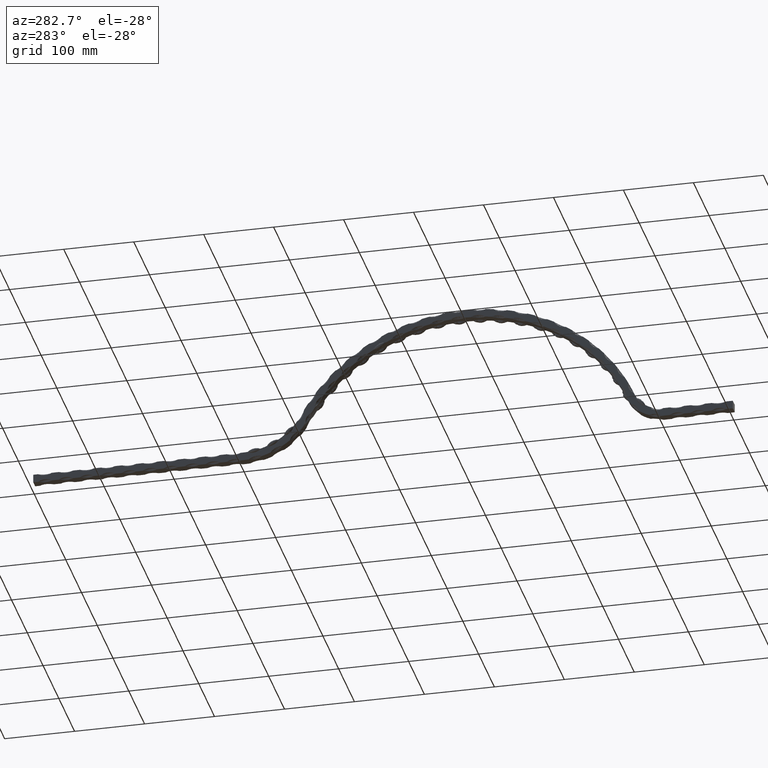
[diagram: clean part render]
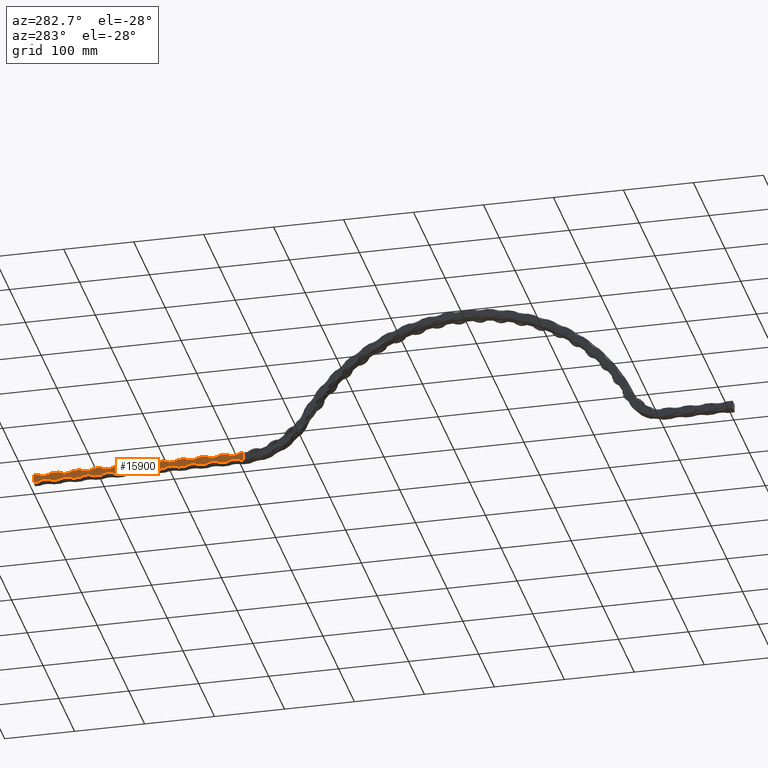
[diagram: same view with one face highlighted and labeled with its STEP entity id]
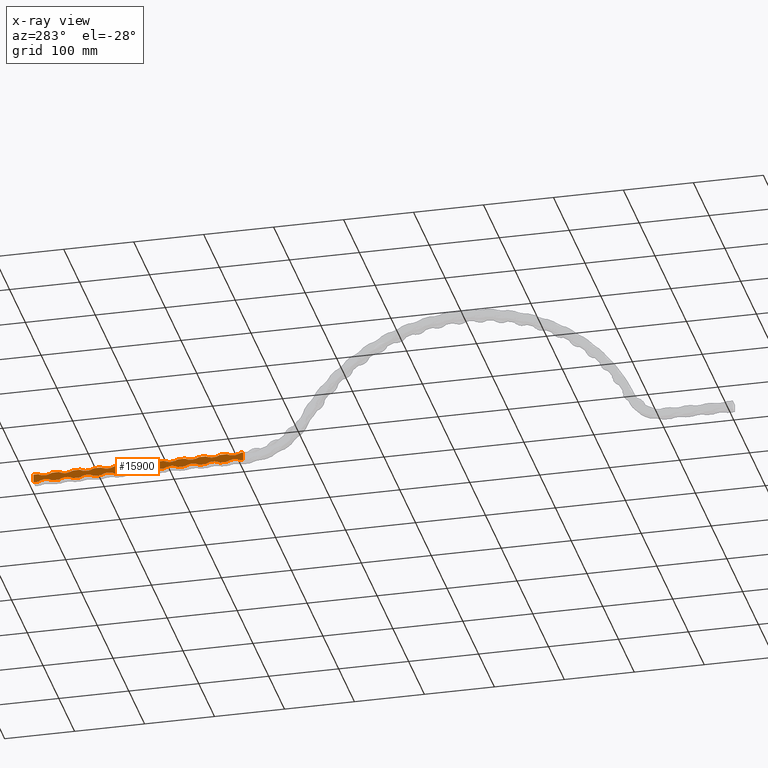
[diagram: x-ray of the same camera — body ghosted, the highlighted face saturated]
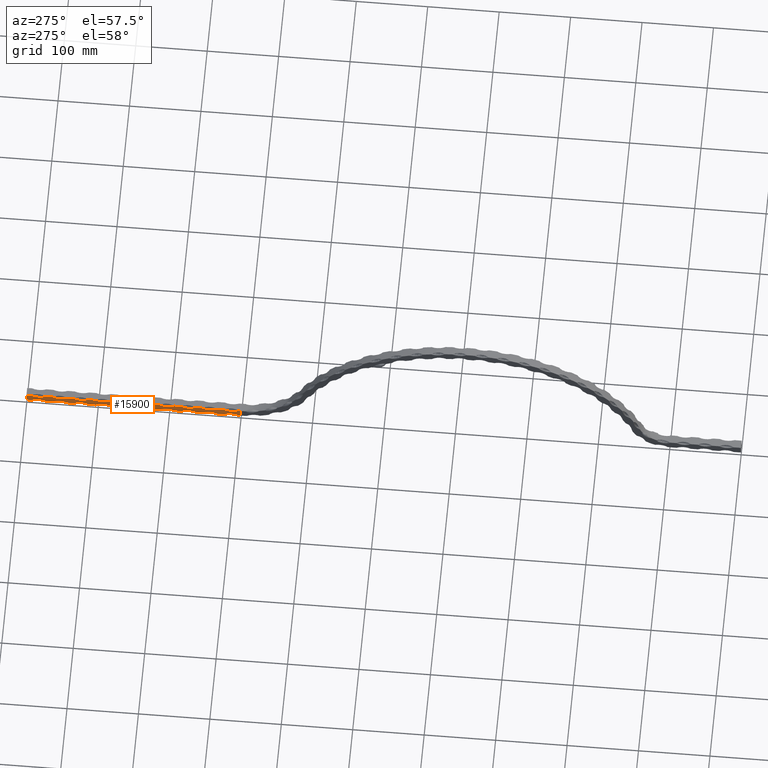
[diagram: same view with one face highlighted and labeled with its STEP entity id]
A machine part, auxiliary view. The second image highlights one B-rep face of the part: STEP entity #15900.
The next image is the same camera in x-ray: the body ghosted, the highlighted face saturated — about 0% of this face is hidden behind the body in this view.
A second angle (auxiliary view) of the same face is appended — the face is thin or edge-on in the first view.
In plain terms, the highlighted planar face has unit normal (-1, 0, 0).
Its self-contained STEP definition (entity closure, byte-faithful):
#121 = CARTESIAN_POINT ( 'NONE',  ( -6.000000000000000000, 943.2533592981684500, 5.999999999999980500 ) ) ;
#166 = CARTESIAN_POINT ( 'NONE',  ( -6.000000000000000000, 700.0000000000001100, -6.000000000000005300 ) ) ;
#200 = EDGE_CURVE ( 'NONE', #4611, #8206, #10618, .T. ) ;
#264 = CARTESIAN_POINT ( 'NONE',  ( -6.000000000000000000, 883.2533592981684500, 5.999999999999960000 ) ) ;
#275 = LINE ( 'NONE', #853, #11154 ) ;
#276 = ORIENTED_EDGE ( 'NONE', *, *, #12450, .T. ) ;
#282 = VERTEX_POINT ( 'NONE', #6508 ) ;
#368 = VERTEX_POINT ( 'NONE', #16281 ) ;
#491 = DIRECTION ( 'NONE',  ( 0.0000000000000000000, 0.0000000000000000000, 1.000000000000000000 ) ) ;
#521 = VERTEX_POINT ( 'NONE', #9521 ) ;
#559 = VECTOR ( 'NONE', #14732, 1000.000000000000000 ) ;
#621 = CARTESIAN_POINT ( 'NONE',  ( -6.000000000000000000, 933.2533592981684500, -6.000000000000024000 ) ) ;
#813 = CARTESIAN_POINT ( 'NONE',  ( -6.000000000000000000, 700.0000000000001100, -6.000000000000005300 ) ) ;
#850 = ORIENTED_EDGE ( 'NONE', *, *, #8699, .T. ) ;
#853 = CARTESIAN_POINT ( 'NONE',  ( -6.000000000000000000, 700.0000000000001100, -6.000000000000005300 ) ) ;
#902 = CIRCLE ( 'NONE', #16835, 18.16666666666665700 ) ;
#954 = DIRECTION ( 'NONE',  ( 1.000000000000000000, -0.0000000000000000000, -0.0000000000000000000 ) ) ;
#1023 = ORIENTED_EDGE ( 'NONE', *, *, #10650, .F. ) ;
#1112 = ORIENTED_EDGE ( 'NONE', *, *, #17871, .F. ) ;
#1182 = ORIENTED_EDGE ( 'NONE', *, *, #8196, .F. ) ;
#1282 = EDGE_CURVE ( 'NONE', #15871, #13392, #4335, .T. ) ;
#1290 = ORIENTED_EDGE ( 'NONE', *, *, #7136, .T. ) ;
#1478 = CARTESIAN_POINT ( 'NONE',  ( -6.000000000000000000, 1000.000000000000000, 6.000000000000130600 ) ) ;
#1514 = DIRECTION ( 'NONE',  ( 1.000000000000000000, -0.0000000000000000000, -0.0000000000000000000 ) ) ;
#1529 = DIRECTION ( 'NONE',  ( 0.0000000000000000000, 0.0000000000000000000, 1.000000000000000000 ) ) ;
#1532 = CARTESIAN_POINT ( 'NONE',  ( -6.000000000000000000, 700.0000000000001100, -6.000000000000005300 ) ) ;
#1537 = VECTOR ( 'NONE', #11964, 1000.000000000000000 ) ;
#1552 = VERTEX_POINT ( 'NONE', #8007 ) ;
#1579 = LINE ( 'NONE', #17161, #8524 ) ;
#1636 = DIRECTION ( 'NONE',  ( 0.0000000000000000000, 1.000000000000000000, 4.163336342344336500E-016 ) ) ;
#1648 = VERTEX_POINT ( 'NONE', #2617 ) ;
#1669 = AXIS2_PLACEMENT_3D ( 'NONE', #12584, #15285, #4246 ) ;
#1674 = DIRECTION ( 'NONE',  ( 0.0000000000000000000, 1.000000000000000000, 4.163336342344336500E-016 ) ) ;
#1687 = LINE ( 'NONE', #1764, #4319 ) ;
#1725 = CARTESIAN_POINT ( 'NONE',  ( -6.000000000000000000, 873.2533592981683300, 5.999999999999954700 ) ) ;
#1747 = CARTESIAN_POINT ( 'NONE',  ( -6.000000000000000000, 773.2533592981683300, -21.16666666666673200 ) ) ;
#1764 = CARTESIAN_POINT ( 'NONE',  ( -6.000000000000000000, 700.0000000000001100, -6.000000000000005300 ) ) ;
#1799 = ORIENTED_EDGE ( 'NONE', *, *, #10679, .T. ) ;
#1851 = CARTESIAN_POINT ( 'NONE',  ( -6.000000000000000000, 913.2533592981684500, 5.999999999999969800 ) ) ;
#2008 = CARTESIAN_POINT ( 'NONE',  ( -6.000000000000000000, 883.2533592981685600, -5.999999999999929800 ) ) ;
#2045 = ORIENTED_EDGE ( 'NONE', *, *, #4818, .T. ) ;
#2080 = DIRECTION ( 'NONE',  ( 1.000000000000000000, -0.0000000000000000000, -0.0000000000000000000 ) ) ;
#2090 = EDGE_CURVE ( 'NONE', #4611, #11901, #5618, .T. ) ;
#2093 = DIRECTION ( 'NONE',  ( 1.000000000000000000, -0.0000000000000000000, -0.0000000000000000000 ) ) ;
#2127 = CARTESIAN_POINT ( 'NONE',  ( -6.000000000000000000, 893.2533592981684500, -21.16666666666669600 ) ) ;
#2213 = LINE ( 'NONE', #8064, #5059 ) ;
#2243 = VERTEX_POINT ( 'NONE', #14299 ) ;
#2267 = DIRECTION ( 'NONE',  ( 0.0000000000000000000, 1.000000000000000000, 4.163336342344336500E-016 ) ) ;
#2334 = AXIS2_PLACEMENT_3D ( 'NONE', #1747, #14453, #11682 ) ;
#2373 = CARTESIAN_POINT ( 'NONE',  ( -6.000000000000000000, 803.2533592981683300, 21.16666666666659700 ) ) ;
#2417 = VERTEX_POINT ( 'NONE', #2577 ) ;
#2431 = CARTESIAN_POINT ( 'NONE',  ( -6.000000000000000000, 923.2533592981684500, 21.16666666666663200 ) ) ;
#2482 = CARTESIAN_POINT ( 'NONE',  ( -6.000000000000000000, 700.0000000000001100, -6.000000000000005300 ) ) ;
#2507 = LINE ( 'NONE', #6306, #3169 ) ;
#2540 = VECTOR ( 'NONE', #9480, 1000.000000000000000 ) ;
#2576 = CARTESIAN_POINT ( 'NONE',  ( -6.000000000000000000, 993.2533592981682200, -6.000000000000004400 ) ) ;
#2577 = CARTESIAN_POINT ( 'NONE',  ( -6.000000000000000000, 853.2533592981683300, 5.999999999999950300 ) ) ;
#2617 = CARTESIAN_POINT ( 'NONE',  ( -6.000000000000000000, 993.2533592981682200, 5.999999999999993800 ) ) ;
#2690 = VECTOR ( 'NONE', #5810, 1000.000000000000000 ) ;
#2715 = CARTESIAN_POINT ( 'NONE',  ( -6.000000000000000000, 723.2533592981683300, 5.999999999999906700 ) ) ;
#2817 = VECTOR ( 'NONE', #11275, 1000.000000000000000 ) ;
#2823 = EDGE_CURVE ( 'NONE', #16721, #11752, #10868, .T. ) ;
#2913 = CARTESIAN_POINT ( 'NONE',  ( -6.000000000000000000, 700.0000000000001100, -6.000000000000005300 ) ) ;
#3144 = VERTEX_POINT ( 'NONE', #1478 ) ;
#3169 = VECTOR ( 'NONE', #7570, 1000.000000000000000 ) ;
#3295 = DIRECTION ( 'NONE',  ( 0.0000000000000000000, 1.000000000000000000, 4.163336342344336500E-016 ) ) ;
#3374 = DIRECTION ( 'NONE',  ( 1.000000000000000000, -0.0000000000000000000, -0.0000000000000000000 ) ) ;
#3482 = CARTESIAN_POINT ( 'NONE',  ( -6.000000000000000000, 700.0000000000001100, 6.000000000000005300 ) ) ;
#3569 = DIRECTION ( 'NONE',  ( 0.0000000000000000000, 0.0000000000000000000, 1.000000000000000000 ) ) ;
#3582 = LINE ( 'NONE', #166, #17358 ) ;
#3630 = DIRECTION ( 'NONE',  ( 1.000000000000000000, -0.0000000000000000000, -0.0000000000000000000 ) ) ;
#3669 = DIRECTION ( 'NONE',  ( 0.0000000000000000000, 0.0000000000000000000, 1.000000000000000000 ) ) ;
#3674 = EDGE_CURVE ( 'NONE', #9717, #15650, #15036, .T. ) ;
#3697 = AXIS2_PLACEMENT_3D ( 'NONE', #10540, #2093, #6405 ) ;
#3858 = VECTOR ( 'NONE', #12353, 1000.000000000000000 ) ;
#3864 = CARTESIAN_POINT ( 'NONE',  ( -6.000000000000000000, 783.2533592981683300, 5.999999999999925400 ) ) ;
#3945 = AXIS2_PLACEMENT_3D ( 'NONE', #10280, #13230, #15991 ) ;
#3985 = ORIENTED_EDGE ( 'NONE', *, *, #13336, .T. ) ;
#3987 = VERTEX_POINT ( 'NONE', #4498 ) ;
#4013 = CARTESIAN_POINT ( 'NONE',  ( -6.000000000000000000, 823.2533592981683300, 5.999999999999941400 ) ) ;
#4022 = ORIENTED_EDGE ( 'NONE', *, *, #14968, .T. ) ;
#4062 = CARTESIAN_POINT ( 'NONE',  ( -6.000000000000000000, 733.2533592981683300, 5.999999999999912100 ) ) ;
#4109 = VERTEX_POINT ( 'NONE', #621 ) ;
#4150 = DIRECTION ( 'NONE',  ( 1.000000000000000000, -0.0000000000000000000, -0.0000000000000000000 ) ) ;
#4189 = DIRECTION ( 'NONE',  ( 0.0000000000000000000, 1.000000000000000000, 4.163336342344336500E-016 ) ) ;
#4215 = VECTOR ( 'NONE', #12421, 1000.000000000000000 ) ;
#4246 = DIRECTION ( 'NONE',  ( 0.0000000000000000000, -1.222263880321273900E-014, 1.000000000000000000 ) ) ;
#4267 = VECTOR ( 'NONE', #1636, 1000.000000000000000 ) ;
#4291 = ORIENTED_EDGE ( 'NONE', *, *, #2823, .F. ) ;
#4319 = VECTOR ( 'NONE', #12922, 1000.000000000000000 ) ;
#4335 = CIRCLE ( 'NONE', #11795, 18.16666666666665700 ) ;
#4345 = EDGE_CURVE ( 'NONE', #4807, #1648, #6911, .T. ) ;
#4411 = ORIENTED_EDGE ( 'NONE', *, *, #4688, .T. ) ;
#4440 = CARTESIAN_POINT ( 'NONE',  ( -6.000000000000000000, 943.2533592981686800, -5.999999999999904100 ) ) ;
#4485 = DIRECTION ( 'NONE',  ( 1.000000000000000000, -0.0000000000000000000, -0.0000000000000000000 ) ) ;
#4498 = CARTESIAN_POINT ( 'NONE',  ( -6.000000000000000000, 813.2533592981683300, 5.999999999999936100 ) ) ;
#4534 = AXIS2_PLACEMENT_3D ( 'NONE', #7239, #11208, #1529 ) ;
#4541 = VERTEX_POINT ( 'NONE', #13501 ) ;
#4550 = VECTOR ( 'NONE', #13519, 1000.000000000000000 ) ;
#4611 = VERTEX_POINT ( 'NONE', #18093 ) ;
#4670 = ORIENTED_EDGE ( 'NONE', *, *, #16554, .F. ) ;
#4688 = EDGE_CURVE ( 'NONE', #15650, #12928, #8865, .T. ) ;
#4736 = EDGE_CURVE ( 'NONE', #2417, #9702, #14584, .T. ) ;
#4752 = DIRECTION ( 'NONE',  ( 0.0000000000000000000, 1.000000000000000000, 4.163336342344336500E-016 ) ) ;
#4784 = DIRECTION ( 'NONE',  ( 1.000000000000000000, -0.0000000000000000000, -0.0000000000000000000 ) ) ;
#4802 = VERTEX_POINT ( 'NONE', #3864 ) ;
#4807 = VERTEX_POINT ( 'NONE', #16369 ) ;
#4818 = EDGE_CURVE ( 'NONE', #12928, #4807, #13261, .T. ) ;
#4837 = CARTESIAN_POINT ( 'NONE',  ( -6.000000000000000000, 923.2533592981684500, -21.16666666666668600 ) ) ;
#4848 = DIRECTION ( 'NONE',  ( 1.000000000000000000, -0.0000000000000000000, -0.0000000000000000000 ) ) ;
#4904 = CARTESIAN_POINT ( 'NONE',  ( -6.000000000000000000, 700.0000000000001100, 6.000000000000005300 ) ) ;
#4925 = DIRECTION ( 'NONE',  ( 0.0000000000000000000, 1.000000000000000000, 4.163336342344336500E-016 ) ) ;
#4982 = CARTESIAN_POINT ( 'NONE',  ( -6.000000000000000000, 703.2533592981683300, 5.999999999999902300 ) ) ;
#5020 = AXIS2_PLACEMENT_3D ( 'NONE', #15803, #4150, #8324 ) ;
#5059 = VECTOR ( 'NONE', #10879, 1000.000000000000000 ) ;
#5070 = VECTOR ( 'NONE', #9183, 1000.000000000000000 ) ;
#5135 = EDGE_CURVE ( 'NONE', #4109, #7673, #1687, .T. ) ;
#5142 = ORIENTED_EDGE ( 'NONE', *, *, #8138, .F. ) ;
#5349 = CARTESIAN_POINT ( 'NONE',  ( -6.000000000000000000, 833.2533592981683300, 21.16666666666660400 ) ) ;
#5365 = VERTEX_POINT ( 'NONE', #13414 ) ;
#5618 = CIRCLE ( 'NONE', #9343, 18.16666666666665700 ) ;
#5641 = DIRECTION ( 'NONE',  ( 0.0000000000000000000, 0.0000000000000000000, 1.000000000000000000 ) ) ;
#5654 = AXIS2_PLACEMENT_3D ( 'NONE', #13377, #3630, #3569 ) ;
#5779 = AXIS2_PLACEMENT_3D ( 'NONE', #9009, #4784, #7606 ) ;
#5810 = DIRECTION ( 'NONE',  ( 0.0000000000000000000, 1.000000000000000000, 4.163336342344336500E-016 ) ) ;
#5843 = CARTESIAN_POINT ( 'NONE',  ( -6.000000000000000000, 793.2533592981685600, -5.999999999999966200 ) ) ;
#5965 = VERTEX_POINT ( 'NONE', #14245 ) ;
#5970 = DIRECTION ( 'NONE',  ( 0.0000000000000000000, 6.111319401606369500E-015, 1.000000000000000000 ) ) ;
#5994 = VERTEX_POINT ( 'NONE', #14233 ) ;
#6012 = ORIENTED_EDGE ( 'NONE', *, *, #1282, .T. ) ;
#6101 = ORIENTED_EDGE ( 'NONE', *, *, #2090, .T. ) ;
#6306 = CARTESIAN_POINT ( 'NONE',  ( -6.000000000000000000, 700.0000000000001100, 6.000000000000005300 ) ) ;
#6307 = CARTESIAN_POINT ( 'NONE',  ( -6.000000000000000000, 1000.000000000000000, 6.000000000000130600 ) ) ;
#6405 = DIRECTION ( 'NONE',  ( 0.0000000000000000000, 0.0000000000000000000, 1.000000000000000000 ) ) ;
#6460 = DIRECTION ( 'NONE',  ( 0.0000000000000000000, 1.000000000000000000, 4.163336342344336500E-016 ) ) ;
#6508 = CARTESIAN_POINT ( 'NONE',  ( -6.000000000000000000, 813.2533592981683300, -6.000000000000062200 ) ) ;
#6633 = LINE ( 'NONE', #11896, #559 ) ;
#6662 = CARTESIAN_POINT ( 'NONE',  ( -6.000000000000000000, 713.2533592981683300, 21.16666666666656500 ) ) ;
#6694 = VERTEX_POINT ( 'NONE', #12354 ) ;
#6819 = ORIENTED_EDGE ( 'NONE', *, *, #10898, .T. ) ;
#6824 = AXIS2_PLACEMENT_3D ( 'NONE', #14583, #7296, #5970 ) ;
#6911 = CIRCLE ( 'NONE', #9738, 18.16666666666665700 ) ;
#6933 = CARTESIAN_POINT ( 'NONE',  ( -6.000000000000000000, 793.2533592981683300, 5.999999999999931600 ) ) ;
#7004 = VERTEX_POINT ( 'NONE', #7708 ) ;
#7119 = CARTESIAN_POINT ( 'NONE',  ( -6.000000000000000000, 700.0000000000001100, -6.000000000000005300 ) ) ;
#7136 = EDGE_CURVE ( 'NONE', #7654, #9717, #13898, .T. ) ;
#7160 = VECTOR ( 'NONE', #4925, 1000.000000000000000 ) ;
#7184 = ORIENTED_EDGE ( 'NONE', *, *, #14790, .T. ) ;
#7236 = LINE ( 'NONE', #7310, #13375 ) ;
#7239 = CARTESIAN_POINT ( 'NONE',  ( -6.000000000000000000, 803.2533592981683300, -21.16666666666672100 ) ) ;
#7296 = DIRECTION ( 'NONE',  ( 1.000000000000000000, -0.0000000000000000000, -0.0000000000000000000 ) ) ;
#7303 = LINE ( 'NONE', #2482, #3858 ) ;
#7310 = CARTESIAN_POINT ( 'NONE',  ( -6.000000000000000000, 700.0000000000001100, 6.000000000000005300 ) ) ;
#7496 = CIRCLE ( 'NONE', #7516, 18.16666666666665700 ) ;
#7516 = AXIS2_PLACEMENT_3D ( 'NONE', #5349, #13526, #15130 ) ;
#7570 = DIRECTION ( 'NONE',  ( 0.0000000000000000000, 1.776356839400250500E-015, 1.000000000000000000 ) ) ;
#7606 = DIRECTION ( 'NONE',  ( 0.0000000000000000000, 0.0000000000000000000, 1.000000000000000000 ) ) ;
#7654 = VERTEX_POINT ( 'NONE', #1851 ) ;
#7668 = CIRCLE ( 'NONE', #1669, 18.16666666666665700 ) ;
#7670 = CARTESIAN_POINT ( 'NONE',  ( -6.000000000000000000, 743.2533592981683300, 21.16666666666657500 ) ) ;
#7673 = VERTEX_POINT ( 'NONE', #4440 ) ;
#7700 = ORIENTED_EDGE ( 'NONE', *, *, #17901, .T. ) ;
#7708 = CARTESIAN_POINT ( 'NONE',  ( -6.000000000000000000, 733.2533592981684500, -5.999999999999992000 ) ) ;
#7876 = LINE ( 'NONE', #16711, #4215 ) ;
#8007 = CARTESIAN_POINT ( 'NONE',  ( -6.000000000000000000, 763.2533592981684500, -5.999999999999978700 ) ) ;
#8031 = VERTEX_POINT ( 'NONE', #6933 ) ;
#8040 = PLANE ( 'NONE',  #17941 ) ;
#8064 = CARTESIAN_POINT ( 'NONE',  ( -6.000000000000000000, 700.0000000000001100, -6.000000000000005300 ) ) ;
#8069 = VECTOR ( 'NONE', #1674, 1000.000000000000000 ) ;
#8119 = CIRCLE ( 'NONE', #3945, 18.16666666666665700 ) ;
#8138 = EDGE_CURVE ( 'NONE', #16826, #13233, #17836, .T. ) ;
#8196 = EDGE_CURVE ( 'NONE', #11036, #2243, #7303, .T. ) ;
#8206 = VERTEX_POINT ( 'NONE', #16576 ) ;
#8268 = CARTESIAN_POINT ( 'NONE',  ( -6.000000000000000000, 783.2533592981683300, -6.000000000000072800 ) ) ;
#8310 = VERTEX_POINT ( 'NONE', #4062 ) ;
#8324 = DIRECTION ( 'NONE',  ( 0.0000000000000000000, 0.0000000000000000000, 1.000000000000000000 ) ) ;
#8439 = ORIENTED_EDGE ( 'NONE', *, *, #13279, .T. ) ;
#8471 = ORIENTED_EDGE ( 'NONE', *, *, #10447, .F. ) ;
#8485 = CARTESIAN_POINT ( 'NONE',  ( -6.000000000000000000, 983.2533592981682200, 21.16666666666665400 ) ) ;
#8524 = VECTOR ( 'NONE', #4752, 1000.000000000000000 ) ;
#8627 = EDGE_CURVE ( 'NONE', #5994, #4802, #8816, .T. ) ;
#8652 = EDGE_CURVE ( 'NONE', #8310, #9001, #17176, .T. ) ;
#8699 = EDGE_CURVE ( 'NONE', #17083, #7654, #6633, .T. ) ;
#8731 = CIRCLE ( 'NONE', #9973, 18.16666666666665700 ) ;
#8733 = LINE ( 'NONE', #17776, #5070 ) ;
#8816 = CIRCLE ( 'NONE', #5779, 18.16666666666665700 ) ;
#8855 = CARTESIAN_POINT ( 'NONE',  ( -6.000000000000000000, 703.2533592981684500, -6.000000000000004400 ) ) ;
#8865 = CIRCLE ( 'NONE', #5654, 18.16666666666665700 ) ;
#8922 = LINE ( 'NONE', #12027, #1537 ) ;
#8941 = DIRECTION ( 'NONE',  ( 0.0000000000000000000, 1.000000000000000000, 4.163336342344336500E-016 ) ) ;
#8996 = EDGE_CURVE ( 'NONE', #16721, #2243, #15415, .T. ) ;
#9001 = VERTEX_POINT ( 'NONE', #15811 ) ;
#9009 = CARTESIAN_POINT ( 'NONE',  ( -6.000000000000000000, 773.2533592981683300, 21.16666666666658300 ) ) ;
#9183 = DIRECTION ( 'NONE',  ( 0.0000000000000000000, 1.000000000000000000, 4.163336342344336500E-016 ) ) ;
#9204 = CARTESIAN_POINT ( 'NONE',  ( -6.000000000000000000, 723.2533592981683300, -6.000000000000092400 ) ) ;
#9214 = EDGE_CURVE ( 'NONE', #12723, #6694, #7496, .T. ) ;
#9312 = EDGE_CURVE ( 'NONE', #4802, #8031, #16271, .T. ) ;
#9343 = AXIS2_PLACEMENT_3D ( 'NONE', #12703, #4485, #10009 ) ;
#9440 = CIRCLE ( 'NONE', #12240, 18.16666666666665700 ) ;
#9458 = VERTEX_POINT ( 'NONE', #14510 ) ;
#9480 = DIRECTION ( 'NONE',  ( 0.0000000000000000000, 1.000000000000000000, 4.163336342344336500E-016 ) ) ;
#9521 = CARTESIAN_POINT ( 'NONE',  ( -6.000000000000000000, 753.2533592981683300, -6.000000000000082600 ) ) ;
#9523 = VECTOR ( 'NONE', #17904, 1000.000000000000000 ) ;
#9529 = ORIENTED_EDGE ( 'NONE', *, *, #8652, .T. ) ;
#9669 = CARTESIAN_POINT ( 'NONE',  ( -6.000000000000000000, 963.2533592981684500, -6.000000000000014200 ) ) ;
#9702 = VERTEX_POINT ( 'NONE', #1725 ) ;
#9717 = VERTEX_POINT ( 'NONE', #14250 ) ;
#9738 = AXIS2_PLACEMENT_3D ( 'NONE', #8485, #14140, #5641 ) ;
#9832 = LINE ( 'NONE', #6307, #15760 ) ;
#9867 = CARTESIAN_POINT ( 'NONE',  ( -6.000000000000000000, 713.2533592981683300, -21.16666666666675000 ) ) ;
#9973 = AXIS2_PLACEMENT_3D ( 'NONE', #2127, #3374, #491 ) ;
#10009 = DIRECTION ( 'NONE',  ( 0.0000000000000000000, 6.111319401606369500E-015, 1.000000000000000000 ) ) ;
#10234 = EDGE_CURVE ( 'NONE', #5365, #368, #2507, .T. ) ;
#10260 = ORIENTED_EDGE ( 'NONE', *, *, #16095, .T. ) ;
#10270 = ORIENTED_EDGE ( 'NONE', *, *, #13902, .T. ) ;
#10280 = CARTESIAN_POINT ( 'NONE',  ( -6.000000000000000000, 893.2533592981684500, 21.16666666666662500 ) ) ;
#10447 = EDGE_CURVE ( 'NONE', #9458, #4541, #13847, .T. ) ;
#10536 = DIRECTION ( 'NONE',  ( 0.0000000000000000000, 1.000000000000000000, 4.163336342344336500E-016 ) ) ;
#10539 = DIRECTION ( 'NONE',  ( 0.0000000000000000000, 0.0000000000000000000, 1.000000000000000000 ) ) ;
#10540 = CARTESIAN_POINT ( 'NONE',  ( -6.000000000000000000, 863.2533592981683300, 21.16666666666661500 ) ) ;
#10562 = ORIENTED_EDGE ( 'NONE', *, *, #200, .F. ) ;
#10618 = LINE ( 'NONE', #1532, #2817 ) ;
#10650 = EDGE_CURVE ( 'NONE', #5365, #13392, #3582, .T. ) ;
#10679 = EDGE_CURVE ( 'NONE', #17636, #17083, #8119, .T. ) ;
#10752 = ORIENTED_EDGE ( 'NONE', *, *, #8627, .T. ) ;
#10795 = CARTESIAN_POINT ( 'NONE',  ( -6.000000000000000000, 700.0000000000001100, 6.000000000000005300 ) ) ;
#10829 = VERTEX_POINT ( 'NONE', #2008 ) ;
#10868 = LINE ( 'NONE', #813, #7160 ) ;
#10879 = DIRECTION ( 'NONE',  ( 0.0000000000000000000, 1.000000000000000000, 4.163336342344336500E-016 ) ) ;
#10898 = EDGE_CURVE ( 'NONE', #8031, #3987, #9440, .T. ) ;
#10958 = ORIENTED_EDGE ( 'NONE', *, *, #15548, .T. ) ;
#11036 = VERTEX_POINT ( 'NONE', #9669 ) ;
#11069 = ORIENTED_EDGE ( 'NONE', *, *, #12838, .T. ) ;
#11104 = AXIS2_PLACEMENT_3D ( 'NONE', #6662, #12302, #13891 ) ;
#11138 = CIRCLE ( 'NONE', #2334, 18.16666666666665700 ) ;
#11154 = VECTOR ( 'NONE', #6460, 1000.000000000000000 ) ;
#11208 = DIRECTION ( 'NONE',  ( 1.000000000000000000, -0.0000000000000000000, -0.0000000000000000000 ) ) ;
#11240 = VECTOR ( 'NONE', #2267, 1000.000000000000000 ) ;
#11275 = DIRECTION ( 'NONE',  ( 0.0000000000000000000, 1.000000000000000000, 4.163336342344336500E-016 ) ) ;
#11315 = CARTESIAN_POINT ( 'NONE',  ( -6.000000000000000000, 700.0000000000001100, -6.000000000000005300 ) ) ;
#11357 = CARTESIAN_POINT ( 'NONE',  ( -6.000000000000000000, 700.0000000000001100, 6.000000000000005300 ) ) ;
#11504 = CARTESIAN_POINT ( 'NONE',  ( -6.000000000000000000, 903.2533592981684500, 5.999999999999964500 ) ) ;
#11578 = CIRCLE ( 'NONE', #14213, 18.16666666666665700 ) ;
#11580 = EDGE_CURVE ( 'NONE', #282, #13233, #12511, .T. ) ;
#11682 = DIRECTION ( 'NONE',  ( 0.0000000000000000000, -1.222263880321273900E-014, 1.000000000000000000 ) ) ;
#11752 = VERTEX_POINT ( 'NONE', #11820 ) ;
#11787 = ORIENTED_EDGE ( 'NONE', *, *, #12714, .T. ) ;
#11795 = AXIS2_PLACEMENT_3D ( 'NONE', #9867, #1514, #12673 ) ;
#11820 = CARTESIAN_POINT ( 'NONE',  ( -6.000000000000000000, 1000.000000000000000, -5.999999999999880100 ) ) ;
#11896 = CARTESIAN_POINT ( 'NONE',  ( -6.000000000000000000, 700.0000000000001100, 6.000000000000005300 ) ) ;
#11901 = VERTEX_POINT ( 'NONE', #14794 ) ;
#11942 = ORIENTED_EDGE ( 'NONE', *, *, #9214, .T. ) ;
#11964 = DIRECTION ( 'NONE',  ( 0.0000000000000000000, 1.000000000000000000, 4.163336342344336500E-016 ) ) ;
#12008 = CIRCLE ( 'NONE', #11104, 18.16666666666665400 ) ;
#12027 = CARTESIAN_POINT ( 'NONE',  ( -6.000000000000000000, 700.0000000000001100, 6.000000000000005300 ) ) ;
#12122 = CARTESIAN_POINT ( 'NONE',  ( -6.000000000000000000, 963.2533592981684500, 5.999999999999984900 ) ) ;
#12155 = DIRECTION ( 'NONE',  ( 0.0000000000000000000, 0.0000000000000000000, 1.000000000000000000 ) ) ;
#12240 = AXIS2_PLACEMENT_3D ( 'NONE', #2373, #14716, #3669 ) ;
#12302 = DIRECTION ( 'NONE',  ( 1.000000000000000000, -0.0000000000000000000, -0.0000000000000000000 ) ) ;
#12353 = DIRECTION ( 'NONE',  ( 0.0000000000000000000, 1.000000000000000000, 4.163336342344336500E-016 ) ) ;
#12354 = CARTESIAN_POINT ( 'NONE',  ( -6.000000000000000000, 843.2533592981683300, 5.999999999999945800 ) ) ;
#12421 = DIRECTION ( 'NONE',  ( 0.0000000000000000000, 1.000000000000000000, 4.163336342344336500E-016 ) ) ;
#12450 = EDGE_CURVE ( 'NONE', #11036, #7673, #13581, .T. ) ;
#12487 = DIRECTION ( 'NONE',  ( 0.0000000000000000000, 6.111319401606369500E-015, 1.000000000000000000 ) ) ;
#12511 = CIRCLE ( 'NONE', #4534, 18.16666666666665700 ) ;
#12584 = CARTESIAN_POINT ( 'NONE',  ( -6.000000000000000000, 743.2533592981683300, -21.16666666666674200 ) ) ;
#12632 = EDGE_LOOP ( 'NONE', ( #4291, #16646, #1182, #276, #14724, #11069, #8471, #15773, #16821, #7700, #10562, #6101, #4670, #16689, #5142, #8439, #13965, #10260, #1112, #6012, #1023, #15222, #10270, #7184, #3985, #9529, #4022, #10752, #15993, #6819, #10958, #11942, #17614, #13848, #11787, #1799, #850, #1290, #15591, #4411, #2045, #13954, #16311, #13905 ) ) ;
#12673 = DIRECTION ( 'NONE',  ( 0.0000000000000000000, 0.0000000000000000000, 1.000000000000000000 ) ) ;
#12703 = CARTESIAN_POINT ( 'NONE',  ( -6.000000000000000000, 833.2533592981683300, -21.16666666666671000 ) ) ;
#12714 = EDGE_CURVE ( 'NONE', #9702, #17636, #7876, .T. ) ;
#12723 = VERTEX_POINT ( 'NONE', #4013 ) ;
#12838 = EDGE_CURVE ( 'NONE', #4109, #4541, #902, .T. ) ;
#12922 = DIRECTION ( 'NONE',  ( 0.0000000000000000000, 1.000000000000000000, 4.163336342344336500E-016 ) ) ;
#12928 = VERTEX_POINT ( 'NONE', #12122 ) ;
#12972 = EDGE_CURVE ( 'NONE', #1648, #3144, #8733, .T. ) ;
#13195 = VECTOR ( 'NONE', #3295, 1000.000000000000000 ) ;
#13230 = DIRECTION ( 'NONE',  ( 1.000000000000000000, -0.0000000000000000000, -0.0000000000000000000 ) ) ;
#13233 = VERTEX_POINT ( 'NONE', #5843 ) ;
#13261 = LINE ( 'NONE', #13671, #9523 ) ;
#13279 = EDGE_CURVE ( 'NONE', #16826, #1552, #11138, .T. ) ;
#13336 = EDGE_CURVE ( 'NONE', #14324, #8310, #1579, .T. ) ;
#13375 = VECTOR ( 'NONE', #8941, 1000.000000000000000 ) ;
#13377 = CARTESIAN_POINT ( 'NONE',  ( -6.000000000000000000, 953.2533592981684500, 21.16666666666664700 ) ) ;
#13392 = VERTEX_POINT ( 'NONE', #8855 ) ;
#13414 = CARTESIAN_POINT ( 'NONE',  ( -6.000000000000000000, 700.0000000000001100, -6.000000000000005300 ) ) ;
#13501 = CARTESIAN_POINT ( 'NONE',  ( -6.000000000000000000, 913.2533592981686800, -5.999999999999915600 ) ) ;
#13519 = DIRECTION ( 'NONE',  ( 0.0000000000000000000, 1.000000000000000000, 4.163336342344336500E-016 ) ) ;
#13526 = DIRECTION ( 'NONE',  ( 1.000000000000000000, -0.0000000000000000000, -0.0000000000000000000 ) ) ;
#13581 = CIRCLE ( 'NONE', #5020, 18.16666666666665700 ) ;
#13599 = FACE_OUTER_BOUND ( 'NONE', #12632, .T. ) ;
#13671 = CARTESIAN_POINT ( 'NONE',  ( -6.000000000000000000, 700.0000000000001100, 6.000000000000005300 ) ) ;
#13779 = LINE ( 'NONE', #11357, #8069 ) ;
#13847 = LINE ( 'NONE', #11315, #13195 ) ;
#13848 = ORIENTED_EDGE ( 'NONE', *, *, #4736, .T. ) ;
#13891 = DIRECTION ( 'NONE',  ( 0.0000000000000000000, 0.0000000000000000000, 1.000000000000000000 ) ) ;
#13898 = CIRCLE ( 'NONE', #17856, 18.16666666666665700 ) ;
#13902 = EDGE_CURVE ( 'NONE', #368, #15101, #13779, .T. ) ;
#13905 = ORIENTED_EDGE ( 'NONE', *, *, #17457, .F. ) ;
#13954 = ORIENTED_EDGE ( 'NONE', *, *, #4345, .T. ) ;
#13965 = ORIENTED_EDGE ( 'NONE', *, *, #16615, .F. ) ;
#14140 = DIRECTION ( 'NONE',  ( 1.000000000000000000, -0.0000000000000000000, -0.0000000000000000000 ) ) ;
#14213 = AXIS2_PLACEMENT_3D ( 'NONE', #18059, #15246, #12487 ) ;
#14233 = CARTESIAN_POINT ( 'NONE',  ( -6.000000000000000000, 763.2533592981683300, 5.999999999999921000 ) ) ;
#14245 = CARTESIAN_POINT ( 'NONE',  ( -6.000000000000000000, 873.2533592981683300, -6.000000000000043500 ) ) ;
#14250 = CARTESIAN_POINT ( 'NONE',  ( -6.000000000000000000, 933.2533592981684500, 5.999999999999974200 ) ) ;
#14299 = CARTESIAN_POINT ( 'NONE',  ( -6.000000000000000000, 973.2533592981684500, -5.999999999999891600 ) ) ;
#14324 = VERTEX_POINT ( 'NONE', #2715 ) ;
#14453 = DIRECTION ( 'NONE',  ( 1.000000000000000000, -0.0000000000000000000, -0.0000000000000000000 ) ) ;
#14510 = CARTESIAN_POINT ( 'NONE',  ( -6.000000000000000000, 903.2533592981684500, -6.000000000000033800 ) ) ;
#14583 = CARTESIAN_POINT ( 'NONE',  ( -6.000000000000000000, 983.2533592981682200, -21.16666666666666400 ) ) ;
#14584 = CIRCLE ( 'NONE', #3697, 18.16666666666666100 ) ;
#14716 = DIRECTION ( 'NONE',  ( 1.000000000000000000, -0.0000000000000000000, -0.0000000000000000000 ) ) ;
#14724 = ORIENTED_EDGE ( 'NONE', *, *, #5135, .F. ) ;
#14732 = DIRECTION ( 'NONE',  ( 0.0000000000000000000, 1.000000000000000000, 4.163336342344336500E-016 ) ) ;
#14790 = EDGE_CURVE ( 'NONE', #15101, #14324, #12008, .T. ) ;
#14794 = CARTESIAN_POINT ( 'NONE',  ( -6.000000000000000000, 823.2533592981685600, -5.999999999999953800 ) ) ;
#14859 = DIRECTION ( 'NONE',  ( -1.000000000000000000, 0.0000000000000000000, 0.0000000000000000000 ) ) ;
#14900 = VECTOR ( 'NONE', #10536, 1000.000000000000000 ) ;
#14968 = EDGE_CURVE ( 'NONE', #9001, #5994, #8922, .T. ) ;
#15036 = LINE ( 'NONE', #3482, #4550 ) ;
#15101 = VERTEX_POINT ( 'NONE', #4982 ) ;
#15130 = DIRECTION ( 'NONE',  ( 0.0000000000000000000, 0.0000000000000000000, 1.000000000000000000 ) ) ;
#15186 = DIRECTION ( 'NONE',  ( 0.0000000000000000000, 0.0000000000000000000, 1.000000000000000000 ) ) ;
#15222 = ORIENTED_EDGE ( 'NONE', *, *, #10234, .T. ) ;
#15246 = DIRECTION ( 'NONE',  ( 1.000000000000000000, -0.0000000000000000000, -0.0000000000000000000 ) ) ;
#15285 = DIRECTION ( 'NONE',  ( 1.000000000000000000, -0.0000000000000000000, -0.0000000000000000000 ) ) ;
#15415 = CIRCLE ( 'NONE', #6824, 18.16666666666665700 ) ;
#15548 = EDGE_CURVE ( 'NONE', #3987, #12723, #15677, .T. ) ;
#15591 = ORIENTED_EDGE ( 'NONE', *, *, #3674, .T. ) ;
#15650 = VERTEX_POINT ( 'NONE', #121 ) ;
#15677 = LINE ( 'NONE', #4904, #11240 ) ;
#15680 = CARTESIAN_POINT ( 'NONE',  ( -6.000000000000000000, 700.0000000000001100, 6.000000000000005300 ) ) ;
#15760 = VECTOR ( 'NONE', #17455, 1000.000000000000000 ) ;
#15773 = ORIENTED_EDGE ( 'NONE', *, *, #17073, .T. ) ;
#15803 = CARTESIAN_POINT ( 'NONE',  ( -6.000000000000000000, 953.2533592981684500, -21.16666666666667500 ) ) ;
#15811 = CARTESIAN_POINT ( 'NONE',  ( -6.000000000000000000, 753.2533592981683300, 5.999999999999915600 ) ) ;
#15871 = VERTEX_POINT ( 'NONE', #9204 ) ;
#15900 = ADVANCED_FACE ( 'NONE', ( #13599 ), #8040, .T. ) ;
#15991 = DIRECTION ( 'NONE',  ( 0.0000000000000000000, 0.0000000000000000000, 1.000000000000000000 ) ) ;
#15992 = LINE ( 'NONE', #16250, #14900 ) ;
#15993 = ORIENTED_EDGE ( 'NONE', *, *, #9312, .T. ) ;
#16095 = EDGE_CURVE ( 'NONE', #521, #7004, #7668, .T. ) ;
#16179 = EDGE_CURVE ( 'NONE', #5965, #10829, #17770, .T. ) ;
#16250 = CARTESIAN_POINT ( 'NONE',  ( -6.000000000000000000, 700.0000000000001100, -6.000000000000005300 ) ) ;
#16271 = LINE ( 'NONE', #15680, #4267 ) ;
#16281 = CARTESIAN_POINT ( 'NONE',  ( -6.000000000000000000, 700.0000000000001100, 6.000000000000005300 ) ) ;
#16311 = ORIENTED_EDGE ( 'NONE', *, *, #12972, .T. ) ;
#16341 = EDGE_CURVE ( 'NONE', #6694, #2417, #7236, .T. ) ;
#16369 = CARTESIAN_POINT ( 'NONE',  ( -6.000000000000000000, 973.2533592981682200, 5.999999999999989300 ) ) ;
#16554 = EDGE_CURVE ( 'NONE', #282, #11901, #15992, .T. ) ;
#16576 = CARTESIAN_POINT ( 'NONE',  ( -6.000000000000000000, 853.2533592981685600, -5.999999999999942300 ) ) ;
#16615 = EDGE_CURVE ( 'NONE', #521, #1552, #275, .T. ) ;
#16646 = ORIENTED_EDGE ( 'NONE', *, *, #8996, .T. ) ;
#16689 = ORIENTED_EDGE ( 'NONE', *, *, #11580, .T. ) ;
#16711 = CARTESIAN_POINT ( 'NONE',  ( -6.000000000000000000, 700.0000000000001100, 6.000000000000005300 ) ) ;
#16721 = VERTEX_POINT ( 'NONE', #2576 ) ;
#16821 = ORIENTED_EDGE ( 'NONE', *, *, #16179, .F. ) ;
#16826 = VERTEX_POINT ( 'NONE', #8268 ) ;
#16835 = AXIS2_PLACEMENT_3D ( 'NONE', #4837, #2080, #17425 ) ;
#17073 = EDGE_CURVE ( 'NONE', #9458, #10829, #8731, .T. ) ;
#17083 = VERTEX_POINT ( 'NONE', #11504 ) ;
#17161 = CARTESIAN_POINT ( 'NONE',  ( -6.000000000000000000, 700.0000000000001100, 6.000000000000005300 ) ) ;
#17176 = CIRCLE ( 'NONE', #17617, 18.16666666666665700 ) ;
#17358 = VECTOR ( 'NONE', #4189, 1000.000000000000000 ) ;
#17425 = DIRECTION ( 'NONE',  ( 0.0000000000000000000, 0.0000000000000000000, 1.000000000000000000 ) ) ;
#17455 = DIRECTION ( 'NONE',  ( 0.0000000000000000000, 1.776356839400250500E-015, 1.000000000000000000 ) ) ;
#17457 = EDGE_CURVE ( 'NONE', #11752, #3144, #9832, .T. ) ;
#17614 = ORIENTED_EDGE ( 'NONE', *, *, #16341, .T. ) ;
#17617 = AXIS2_PLACEMENT_3D ( 'NONE', #7670, #4848, #10539 ) ;
#17636 = VERTEX_POINT ( 'NONE', #264 ) ;
#17770 = LINE ( 'NONE', #2913, #2690 ) ;
#17776 = CARTESIAN_POINT ( 'NONE',  ( -6.000000000000000000, 700.0000000000001100, 6.000000000000005300 ) ) ;
#17836 = LINE ( 'NONE', #7119, #2540 ) ;
#17856 = AXIS2_PLACEMENT_3D ( 'NONE', #2431, #954, #15186 ) ;
#17871 = EDGE_CURVE ( 'NONE', #15871, #7004, #2213, .T. ) ;
#17901 = EDGE_CURVE ( 'NONE', #5965, #8206, #11578, .T. ) ;
#17904 = DIRECTION ( 'NONE',  ( 0.0000000000000000000, 1.000000000000000000, 4.163336342344336500E-016 ) ) ;
#17941 = AXIS2_PLACEMENT_3D ( 'NONE', #10795, #14859, #12155 ) ;
#18059 = CARTESIAN_POINT ( 'NONE',  ( -6.000000000000000000, 863.2533592981683300, -21.16666666666670300 ) ) ;
#18093 = CARTESIAN_POINT ( 'NONE',  ( -6.000000000000000000, 843.2533592981683300, -6.000000000000053300 ) ) ;